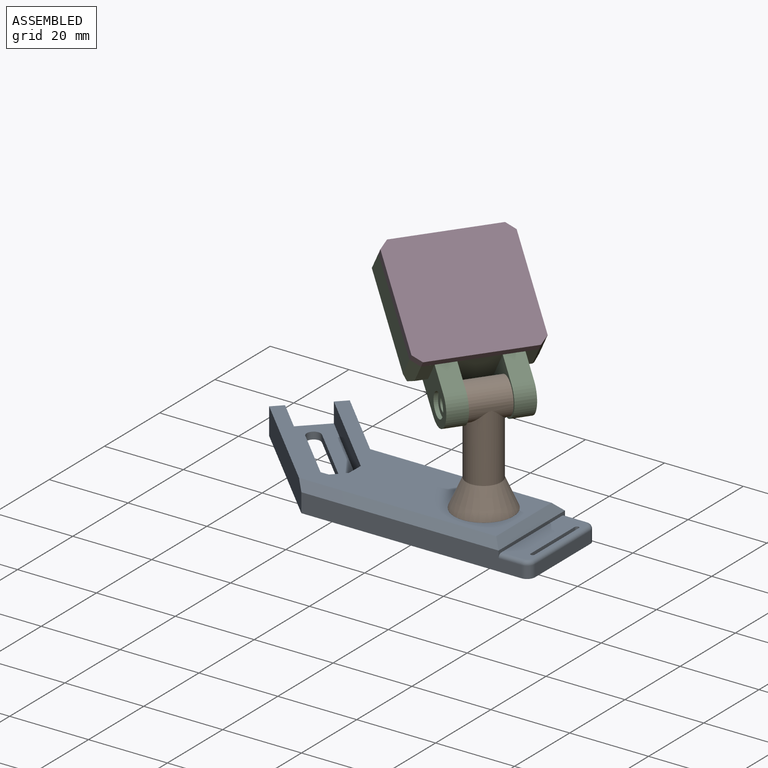
[diagram: assembled view]
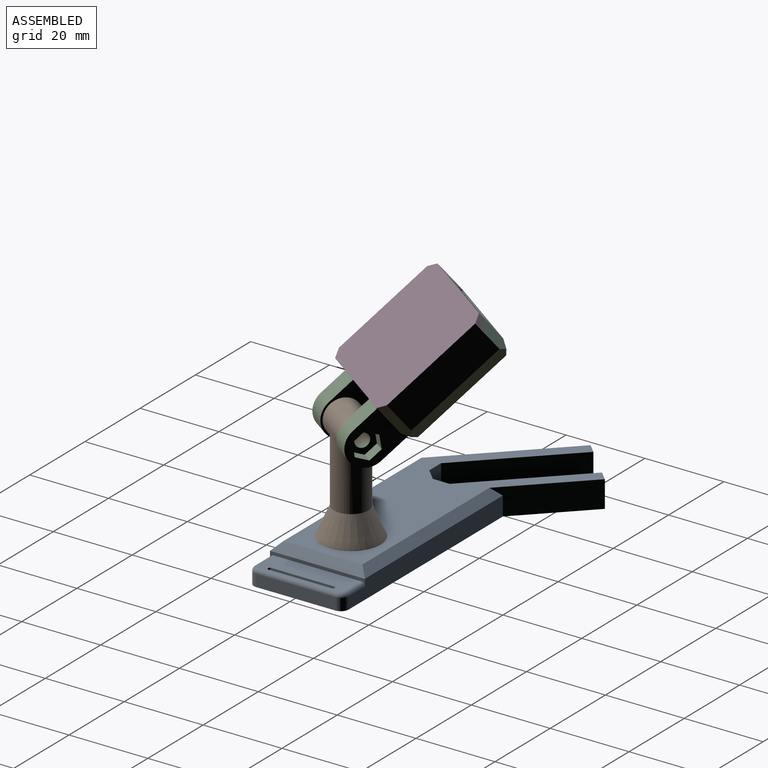
[diagram: assembled view, second angle]
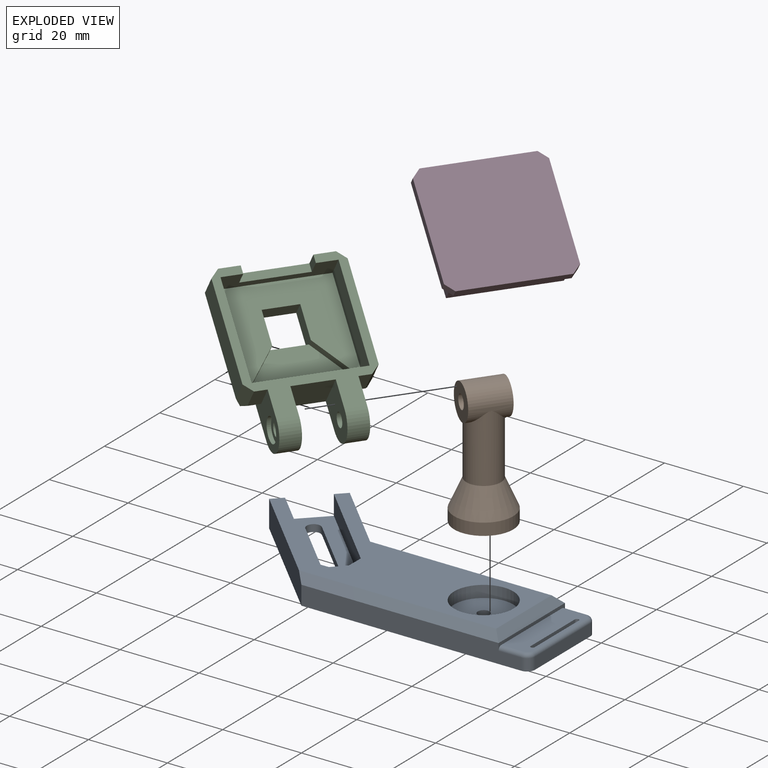
[diagram: exploded view]
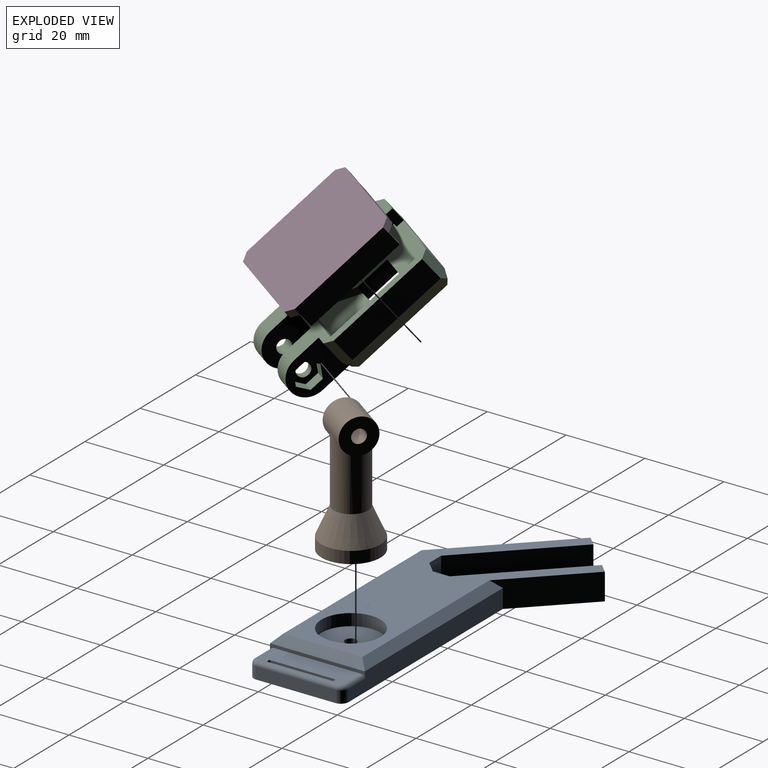
[diagram: exploded view, second angle]
ASSEMBLY  parts=4 mates=3
PART A: 39 faces, bbox 85.2x39.4x6.8 mm
  f0: plane 55.82x4.8mm, normal (0,1,0), area 257.5mm2, adj f8,f9,f16,f28,f32,f34
  f1: plane 20.04x3mm, normal (1,0,0), area 60.1mm2, adj f8,f32,f33,f36
  f2: plane 16x4mm, normal (-1,0,0), area 64mm2, adj f3,f5,f7,f8
  f3: cylinder r=0.5mm len=4mm, axis (0,0,-1), area 6.3mm2, adj f2,f4,f7,f8
  f4: plane 16x4mm, normal (1,0,0), area 64mm2, adj f3,f5,f7,f8
  f5: cylinder r=0.5mm len=4mm, axis (0,0,-1), area 6.3mm2, adj f2,f4,f7,f8
  f6: plane 55.82x4.8mm, normal (0,-1,0), area 257.5mm2, adj f8,f9,f15,f26,f33,f38
  f7: plane 22.04x6.82mm, normal (0,0,1), area 133.2mm2, adj f2,f3,f4,f5,f9,f34,f35,f36
  f8: plane 85.05x39.24mm, normal (0,0,-1), area 1761.8mm2, adj f0,f1,f2,f3,f4,f5,f6,f15
  f9: plane 24.04x1.8mm, normal (1,0,0), area 19.7mm2, adj f0,f6,f7,f27,f34,f38
  f10: plane 22.72x22.72mm, normal (-0.71,-0.71,0), area 160.7mm2, adj f11,f17,f18,f19
  f11: plane 5x4.27mm, normal (-1,0,0), area 21.3mm2, adj f10,f12,f18,f19
  f12: plane 5x3.02mm, normal (-0.71,0.71,0), area 21.3mm2, adj f11,f13,f18,f19
  f13: plane 5x4.27mm, normal (0,1,0), area 21.3mm2, adj f12,f14,f18,f19
  f14: plane 22.72x22.72mm, normal (0.71,0.71,0), area 160.7mm2, adj f13,f17,f18,f19
  f15: plane 27.22x27.22mm, normal (-0.71,-0.71,0), area 259mm2, adj f6,f8,f17,f18,f26
  f16: plane 17.2x17.2mm, normal (0.71,0.71,0), area 149mm2, adj f0,f8,f17,f18,f28
  f17: plane 12.02x12.02mm, normal (-0.71,0.71,0), area 64.1mm2, adj f8,f10,f14,f15,f16,f18,f19
  f18: plane 75.22x37.24mm, normal (0,0,1), area 942.3mm2, adj f10,f11,f12,f13,f14,f15,f16,f17
  f19: plane 30.01x30.01mm, normal (0,0,1), area 266.3mm2, adj f10,f11,f12,f13,f14,f17,f20,f21
  f20: plane 15.56x15.56mm, normal (0.71,0.71,0), area 39.6mm2, adj f8,f19,f21,f22
  f21: cylinder r=1.75mm len=2.99mm, axis (0,0,1), area 9.9mm2, adj f8,f19,f20,f23
  f22: cylinder r=1.75mm len=2.99mm, axis (0,0,1), area 9.9mm2, adj f8,f19,f20,f23
  f23: plane 15.56x15.56mm, normal (-0.71,-0.71,0), area 39.6mm2, adj f8,f19,f21,f22
  f24: cylinder r=7.5mm len=15mm, axis (0,0,1), area 141.4mm2, adj f18,f25
  f25: plane 15x15mm, normal (0,0,1), area 169.6mm2, adj f24,f29
  f26: plane 52x2mm, normal (0,-0.71,0.71), area 141.4mm2, adj f6,f15,f18,f27
  f27: plane 24.04x2mm, normal (0.71,0,0.71), area 62.3mm2, adj f9,f18,f26,f28
  f28: plane 50x2mm, normal (0,0.71,0.71), area 135.8mm2, adj f0,f16,f18,f27
  f29: cylinder r=1.5mm len=3mm, axis (0,0,-1), area 26.4mm2, adj f25,f30
  f30: plane 6.5x6.5mm, normal (0,0,-1), area 26.1mm2, adj f29,f31
  f31: cylinder r=3.25mm len=6.5mm, axis (0,0,-1), area 20.4mm2, adj f8,f30
  f32: cylinder r=2mm len=3mm, axis (0,0,1), area 9.4mm2, adj f0,f1,f8,f35
  f33: cylinder r=2mm len=3mm, axis (0,0,-1), area 9.4mm2, adj f1,f6,f8,f37
  f34: cylinder r=1mm len=5.82mm, axis (-1,0,0), area 9.1mm2, adj f0,f7,f9,f35
  f35: torus R=1mm, axis (0,0,-1), area 4mm2, adj f7,f32,f34,f36
  f36: cylinder r=1mm len=20.04mm, axis (0,1,0), area 31.5mm2, adj f1,f7,f35,f37
  f37: torus R=1mm, axis (0,0,-1), area 4mm2, adj f7,f33,f36,f38
  f38: cylinder r=1mm len=5.82mm, axis (1,0,0), area 9.1mm2, adj f6,f7,f9,f37
PART B: 12 faces, bbox 15x15x32.5 mm
  f0: cylinder r=4.4mm len=17mm, axis (0,0,-1), area 414.1mm2, adj f1,f2,f5,f6
  f1: plane 0.66x0.01mm, normal (0,0,1), area 0mm2, adj f0,f6
  f2: plane 0.66x0.01mm, normal (0,0,1), area 0mm2, adj f0,f6
  f3: plane 15x15mm, normal (0,0,-1), area 171.8mm2, adj f4,f10
  f4: cylinder r=7.5mm len=15mm, axis (0,0,1), area 143.1mm2, adj f3,f5
  f5: cone r=4.4mm half-angle=24deg, axis (0,0,-1), area 284.9mm2, adj f0,f4
  f6: cylinder r=4.5mm len=10mm, axis (0,1,0), area 208mm2, adj f0,f1,f2,f7,f8
  f7: plane 9x9mm, normal (0,-1,0), area 54mm2, adj f6,f9
  f8: plane 9x9mm, normal (0,1,0), area 54mm2, adj f6,f9
  f9: cylinder r=1.75mm len=10mm, axis (0,-1,0), area 110mm2, adj f7,f8
  f10: cylinder r=1.25mm len=20mm, axis (0,0,-1), area 157.1mm2, adj f3,f11
  f11: cone r=0mm half-angle=59deg, axis (0,0,-1), area 5.7mm2, adj f10
PART C: 49 faces, bbox 10x30x41 mm
  f0: plane 36x30mm, normal (1,0,0), area 250mm2, adj f1,f2,f3,f4,f6,f7,f8,f9
  f1: plane 26x6mm, normal (0,0,-1), area 92mm2, adj f0,f32,f33,f36,f37,f38,f39
  f2: plane 14x10mm, normal (0,1,0), area 81.6mm2, adj f0,f5,f6,f15,f16,f17,f18,f19
  f3: plane 14x10mm, normal (0,-1,0), area 84.5mm2, adj f0,f5,f7,f14,f24,f44
  f4: plane 26x8mm, normal (0,0,1), area 208mm2, adj f0,f23,f32,f33,f34,f35
  f5: plane 34x26mm, normal (-1,0,0), area 687.8mm2, adj f2,f3,f6,f7,f8,f9,f10,f27
  f6: cylinder r=5mm len=10mm, axis (0,1,0), area 78.5mm2, adj f0,f2,f5,f10
  f7: cylinder r=5mm len=10mm, axis (0,1,0), area 78.5mm2, adj f0,f3,f5,f9
  f8: plane 10x10mm, normal (0,0,-1), area 100mm2, adj f0,f5,f9,f10
  f9: plane 12x10mm, normal (0,1,0), area 99.6mm2, adj f0,f5,f7,f8,f12
  f10: plane 12x10mm, normal (0,-1,0), area 99.6mm2, adj f0,f5,f6,f8,f11
  f11: cylinder r=1.75mm len=3.5mm, axis (0,-1,0), area 22mm2, adj f10,f21
  f12: cylinder r=1.75mm len=4mm, axis (0,-1,0), area 44mm2, adj f9,f13
  f13: plane 6x6mm, normal (0,-1,0), area 18.7mm2, adj f12,f14
  f14: cylinder r=3mm len=6mm, axis (0,-1,0), area 18.8mm2, adj f3,f13
  f15: plane 3x3mm, normal (0.5,0,-0.87), area 10.4mm2, adj f2,f16,f20,f21
  f16: plane 3x3mm, normal (-0.5,0,-0.87), area 10.4mm2, adj f2,f15,f17,f21
  f17: plane 3.46x3mm, normal (-1,0,0), area 10.4mm2, adj f2,f16,f18,f21
  f18: plane 3x3mm, normal (-0.5,0,0.87), area 10.4mm2, adj f2,f17,f19,f21
  f19: plane 3x3mm, normal (0.5,0,0.87), area 10.4mm2, adj f2,f18,f20,f21
  f20: plane 3.46x3mm, normal (1,0,0), area 10.4mm2, adj f2,f15,f19,f21
  f21: plane 6.93x6mm, normal (0,1,0), area 21.6mm2, adj f11,f15,f16,f17,f18,f19,f20
  f22: plane 6.54x3mm, normal (0,0,-1), area 19.6mm2, adj f0,f2,f40,f45
  f23: plane 26x10.5mm, normal (1,0,0), area 181.1mm2, adj f4,f27,f34,f35
  f24: plane 6.54x3mm, normal (0,0,-1), area 19.6mm2, adj f0,f3,f44,f47
  f25: plane 25x6.54mm, normal (0,-1,0), area 163.4mm2, adj f0,f43,f47,f48
  f26: plane 26x6.54mm, normal (0,0,1), area 105.9mm2, adj f0,f37,f38,f39,f42,f46,f48
  f27: plane 8.5x2mm, normal (0,0,1), area 17mm2, adj f5,f23,f28,f30
  f28: plane 8.5x4mm, normal (0,-1,0), area 34mm2, adj f5,f27,f29,f34,f36
  f29: plane 8.5x4mm, normal (0,0,-1), area 34mm2, adj f5,f28,f30,f36
  f30: plane 8.5x4mm, normal (0,1,0), area 34mm2, adj f5,f27,f29,f35,f36
  f31: plane 25x6.54mm, normal (0,1,0), area 163.4mm2, adj f0,f41,f45,f46
  f32: plane 25x6mm, normal (0,1,0), area 150mm2, adj f0,f1,f4,f36
  f33: plane 25x6mm, normal (0,-1,0), area 150mm2, adj f0,f1,f4,f36
  f34: plane 10.5x8.75mm, normal (0,-0.77,-0.64), area 27.3mm2, adj f4,f23,f28,f36
  f35: plane 10.5x8.75mm, normal (0,0.77,-0.64), area 27.3mm2, adj f4,f23,f30,f36
  f36: plane 26x25mm, normal (1,0,0), area 396.6mm2, adj f1,f28,f29,f30,f32,f33,f34,f35
  f37: plane 4x2mm, normal (0,-1,0), area 8mm2, adj f0,f1,f26,f39
  f38: plane 4x2mm, normal (0,1,0), area 8mm2, adj f0,f1,f26,f39
  f39: plane 16x2mm, normal (1,0,0), area 32mm2, adj f1,f26,f37,f38
  f40: plane 4x3.46mm, normal (-0.5,0,-0.87), area 14mm2, adj f2,f5,f22,f41,f45
  f41: plane 27x3.46mm, normal (-0.5,0.87,0), area 104mm2, adj f5,f31,f40,f42,f45,f46
  f42: plane 28x3.46mm, normal (-0.5,0,0.87), area 108mm2, adj f5,f26,f41,f43,f46,f48
  f43: plane 27x3.46mm, normal (-0.5,-0.87,0), area 104mm2, adj f5,f25,f42,f44,f47,f48
  f44: plane 4x3.46mm, normal (-0.5,0,-0.87), area 14mm2, adj f3,f5,f24,f43,f47
  f45: plane 8.27x2mm, normal (0,0.71,-0.71), area 20.9mm2, adj f0,f22,f31,f40,f41
  f46: plane 8.27x2mm, normal (0,0.71,0.71), area 20.9mm2, adj f0,f26,f31,f41,f42
  f47: plane 8.27x2mm, normal (0,-0.71,-0.71), area 20.9mm2, adj f0,f24,f25,f43,f44
  f48: plane 8.27x2mm, normal (0,-0.71,0.71), area 20.9mm2, adj f0,f25,f26,f42,f43
PART D: 35 faces, bbox 7x30x29 mm
  f0: plane 30x29mm, normal (-1,0,0), area 714mm2, adj f1,f2,f3,f4,f6,f7,f8,f9
  f1: plane 26x4mm, normal (0,0,1), area 84mm2, adj f0,f5,f6,f9,f11,f12,f13
  f2: plane 25x2mm, normal (0,-1,0), area 50mm2, adj f0,f5,f6,f7
  f3: plane 26x2mm, normal (0,0,-1), area 52mm2, adj f0,f5,f7,f8
  f4: plane 25x2mm, normal (0,1,0), area 50mm2, adj f0,f5,f8,f9
  f5: plane 30x29mm, normal (1,0,0), area 862mm2, adj f1,f2,f3,f4,f6,f7,f8,f9
  f6: plane 2x2mm, normal (0,-0.71,0.71), area 5.7mm2, adj f0,f1,f2,f5
  f7: plane 2x2mm, normal (0,-0.71,-0.71), area 5.7mm2, adj f0,f2,f3,f5
  f8: plane 2x2mm, normal (0,0.71,-0.71), area 5.7mm2, adj f0,f3,f4,f5
  f9: plane 2x2mm, normal (0,0.71,0.71), area 5.7mm2, adj f0,f1,f4,f5
  f10: plane 16x2mm, normal (0,0,-1), area 32mm2, adj f0,f11,f12,f13
  f11: plane 2x2mm, normal (0,1,0), area 4mm2, adj f0,f1,f10,f13
  f12: plane 2x2mm, normal (0,-1,0), area 4mm2, adj f0,f1,f10,f13
  f13: plane 16x2mm, normal (-1,0,0), area 32mm2, adj f1,f10,f11,f12
  f14: plane 5x3mm, normal (0,0,-1), area 15mm2, adj f0,f15,f33,f34
  f15: plane 8.5x5mm, normal (0,-1,0), area 42.5mm2, adj f0,f14,f16,f34
  f16: plane 5x3mm, normal (0,0,1), area 15mm2, adj f0,f15,f17,f34
  f17: plane 5x3mm, normal (0,-1,0), area 15mm2, adj f0,f16,f18,f34
  f18: plane 18x5mm, normal (0,0,1), area 90mm2, adj f0,f17,f19,f34
  f19: plane 5x3mm, normal (0,1,0), area 15mm2, adj f0,f18,f20,f34
  f20: plane 5x3mm, normal (0,0,1), area 15mm2, adj f0,f19,f21,f34
  f21: plane 8.5x5mm, normal (0,1,0), area 42.5mm2, adj f0,f20,f22,f34
  f22: plane 5x3mm, normal (0,0,-1), area 15mm2, adj f0,f21,f23,f34
  f23: plane 5x4mm, normal (0,1,0), area 20mm2, adj f0,f22,f24,f34
  f24: plane 5x3mm, normal (0,0,1), area 15mm2, adj f0,f23,f25,f34
  f25: plane 8.5x5mm, normal (0,1,0), area 42.5mm2, adj f0,f24,f26,f34
  f26: plane 5x1mm, normal (0,0,1), area 5mm2, adj f0,f25,f27,f34
  f27: plane 25x5mm, normal (0,-1,0), area 125mm2, adj f0,f26,f28,f34
  f28: plane 26x5mm, normal (0,0,-1), area 130mm2, adj f0,f27,f29,f34
  f29: plane 25x5mm, normal (0,1,0), area 125mm2, adj f0,f28,f30,f34
  f30: plane 5x1mm, normal (0,0,1), area 5mm2, adj f0,f29,f31,f34
  f31: plane 8.5x5mm, normal (0,-1,0), area 42.5mm2, adj f0,f30,f32,f34
  f32: plane 5x3mm, normal (0,0,1), area 15mm2, adj f0,f31,f33,f34
  f33: plane 5x4mm, normal (0,-1,0), area 20mm2, adj f0,f14,f32,f34
  f34: plane 26x25mm, normal (-1,0,0), area 116mm2, adj f14,f15,f16,f17,f18,f19,f20,f21
PLACE A t=(-19.47,8.36,-4.93)mm fixed
PLACE B rot(axis=(0,0,-1),35.6deg) t=(-12.4,30.39,-4.93)mm
PLACE C rot(axis=(-0.26,-0.8,-0.54),61.6deg) t=(17.99,8.61,-23.21)mm
PLACE D rot(axis=(-0.26,-0.8,-0.54),61.6deg) t=(17.99,8.61,-23.21)mm
MATE fastened C.f0 <-> D.f0  axis (0.51,-0.37,0.78) through (22.78,21.17,34.61)mm
MATE revolute C.f6 <-> B.f6  axis (-0.58,-0.81,0) through (21.26,12.42,25.07)mm
MATE revolute B.f0 <-> A.f24  axis (0,0,-1) through (18.35,8.36,-2.93)mm
